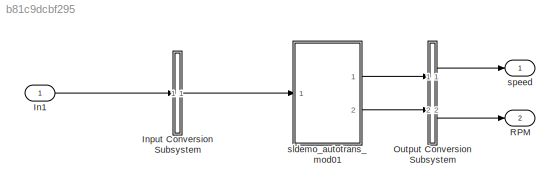
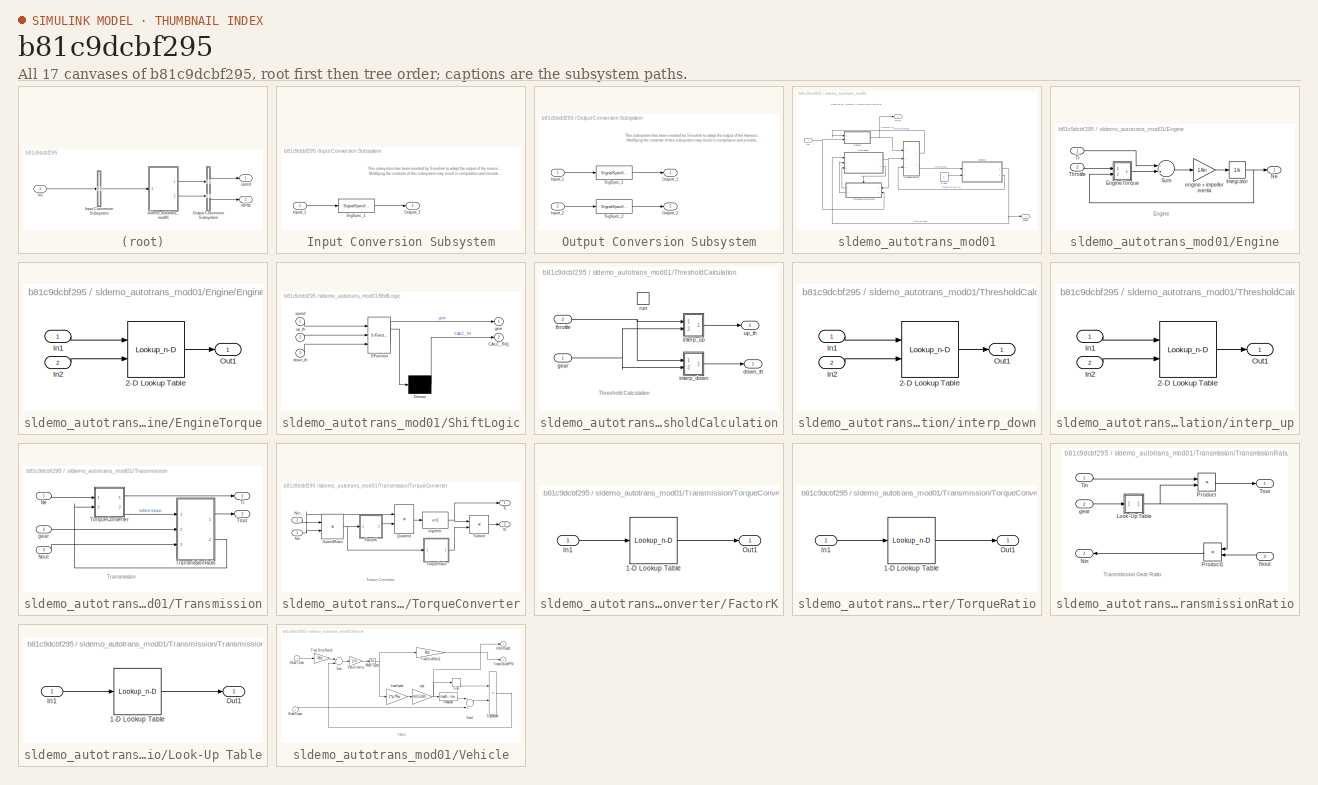
[diagram: thumbnail index - all 17 canvases of the model, root first then tree order]
MODEL slx_b81c9dcbf295
KIND model
CONFIG AbsTol = 1e-6
CONFIG EnableMultiTasking = off
CONFIG FixedStep = auto
CONFIG MaxStep = auto
CONFIG MinStep = auto
CONFIG RelTol = 1e-3
CONFIG SampleTimeConstraint = Unconstrained
CONFIG Solver = ode5
CONFIG SolverName = ode5
CONFIG StartTime = 0.0
CONFIG StopTime = 30
WORKSPACE source: MAT-file member
WORKSPACE Iei = 0.0219914882836
BLOCK [Inport] In1
  IconDisplay = Port number
  OutDataTypeStr = double
  PortDimensions = [1]
  SampleTime = 0
  SignalType = real
  VarSizeSig = No
BLOCK [SubSystem] Input Conversion Subsystem
  AttributesFormatString = %<Description>
  Description = Signal spec.\nand routing
  Permissions = ReadOnly
  PermitHierarchicalResolution = ExplicitOnly
  Ports = [1, 1]
  RequestExecContextInheritance = off
  Tag = __SLT_ICS__
  UserDataPersistent = on
BLOCK [Inport] Input Conversion Subsystem/Inport_1
  IconDisplay = Port number
BLOCK [Outport] Input Conversion Subsystem/Outport_1
  IconDisplay = Port number
BLOCK [SignalSpecification] Input Conversion Subsystem/SigSpec_1
  Dimensions = [1]
  OutDataTypeStr = double
  SampleTime = [0, 0]
  SignalType = real
  VarSizeSig = No
BLOCK [SubSystem] Output Conversion Subsystem
  AttributesFormatString = %<Description>
  Description = Signal spec.\nand routing
  Permissions = ReadOnly
  PermitHierarchicalResolution = ExplicitOnly
  Ports = [2, 2]
  RequestExecContextInheritance = off
  Tag = __SLT_OCS__
  UserDataPersistent = on
BLOCK [Inport] Output Conversion Subsystem/Inport_1
  IconDisplay = Port number
BLOCK [Inport] Output Conversion Subsystem/Inport_2
  IconDisplay = Port number
  Port = 2
BLOCK [Outport] Output Conversion Subsystem/Outport_1
  IconDisplay = Port number
BLOCK [Outport] Output Conversion Subsystem/Outport_2
  IconDisplay = Port number
  Port = 2
BLOCK [SignalSpecification] Output Conversion Subsystem/SigSpec_1
  Dimensions = [1]
  OutDataTypeStr = double
  SignalType = real
  VarSizeSig = No
BLOCK [SignalSpecification] Output Conversion Subsystem/SigSpec_2
  Dimensions = [1]
  OutDataTypeStr = double
  SignalType = real
  VarSizeSig = No
BLOCK [Outport] RPM
  IconDisplay = Port number
  OutDataTypeStr = double
  Port = 2
  PortDimensions = [1]
  SignalType = real
  VarSizeSig = No
BLOCK [SubSystem] sldemo_autotrans_mod01
  DataTypeOverride = Double
  Ports = [1, 2]
  RequestExecContextInheritance = off
  TreatAsAtomicUnit = on
BLOCK [Constant] sldemo_autotrans_mod01/Brake
  Value = 0
BLOCK [SubSystem] sldemo_autotrans_mod01/Engine
  Ports = [2, 1]
  RequestExecContextInheritance = off
BLOCK [SubSystem] sldemo_autotrans_mod01/Engine/EngineTorque
  Ports = [2, 1]
  RequestExecContextInheritance = off
BLOCK [Lookup_n-D] sldemo_autotrans_mod01/Engine/EngineTorque/2-D Lookup Table
  BreakpointsForDimension1 = thvec
  BreakpointsForDimension2 = nevec
  Ports = [2, 1]
  Table = emap
BLOCK [Inport] sldemo_autotrans_mod01/Engine/EngineTorque/In1
  IconDisplay = Port number
  OutDataTypeStr = double
  PortDimensions = 1
  SamplingMode = Sample based
  SignalType = real
BLOCK [Inport] sldemo_autotrans_mod01/Engine/EngineTorque/In2
  IconDisplay = Port number
  OutDataTypeStr = double
  Port = 2
  PortDimensions = 1
  SamplingMode = Sample based
  SignalType = real
BLOCK [Outport] sldemo_autotrans_mod01/Engine/EngineTorque/Out1
  IconDisplay = Port number
  OutDataTypeStr = double
  PortDimensions = 1
  SamplingMode = Sample based
  SignalType = real
BLOCK [Integrator] sldemo_autotrans_mod01/Engine/Integrator
  InitialCondition = 1000
  LimitOutput = on
  LowerSaturationLimit = 600
  Ports = [1, 1]
  UpperSaturationLimit = 6000
  ZeroCross = off
BLOCK [Outport] sldemo_autotrans_mod01/Engine/Ne
  IconDisplay = Port number
  InitialOutput = 0
BLOCK [Sum] sldemo_autotrans_mod01/Engine/Sum
  Inputs = -+
  Ports = [2, 1]
BLOCK [Inport] sldemo_autotrans_mod01/Engine/Throttle
  IconDisplay = Port number
  Port = 2
BLOCK [Inport] sldemo_autotrans_mod01/Engine/Ti
  IconDisplay = Port number
BLOCK [Gain] sldemo_autotrans_mod01/Engine/engine + impeller inertia
  Gain = 1/Iei
BLOCK [Inport] sldemo_autotrans_mod01/In1
  IconDisplay = Port number
  OutDataTypeStr = double
  PortDimensions = 1
  SampleTime = [0,0]
  SamplingMode = Sample based
  SignalType = real
BLOCK [Outport] sldemo_autotrans_mod01/RPM
  IconDisplay = Port number
  OutDataTypeStr = double
  Port = 2
  PortDimensions = 1
  SampleTime = [0,0]
  SamplingMode = Sample based
  SignalType = real
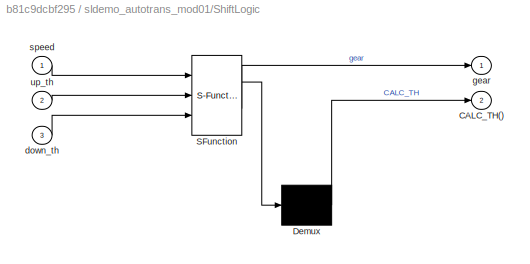
BLOCK [SubSystem] sldemo_autotrans_mod01/ShiftLogic
  ErrorFcn = Stateflow.Translate.translate
  PermitHierarchicalResolution = ExplicitOnly
  Ports = [3, 2]
  RequestExecContextInheritance = off
  SFBlockType = Chart
  TreatAsAtomicUnit = on
BLOCK [Demux] sldemo_autotrans_mod01/ShiftLogic/ Demux 
  Outputs = 1
  Ports = [1, 1]
BLOCK [S-Function] sldemo_autotrans_mod01/ShiftLogic/ SFunction 
  EnableBusSupport = on
  FunctionName = sf_sfun
  Parameters = TWAIT
  PortCounts = [3 2]
  Ports = [3, 2]
  SFcnIsStateOwnerBlock = off
  SFunctionDeploymentMode = off
  Tag = Stateflow S-Function sldemo_autotrans_mod01_Harness1_replacement 1
BLOCK [Outport] sldemo_autotrans_mod01/ShiftLogic/CALC_TH()
  IconDisplay = Port number
  Port = 2
BLOCK [Inport] sldemo_autotrans_mod01/ShiftLogic/down_th
  IconDisplay = Port number
  Port = 3
BLOCK [Outport] sldemo_autotrans_mod01/ShiftLogic/gear
  IconDisplay = Port number
BLOCK [Inport] sldemo_autotrans_mod01/ShiftLogic/speed
  IconDisplay = Port number
BLOCK [Inport] sldemo_autotrans_mod01/ShiftLogic/up_th
  IconDisplay = Port number
  Port = 2
BLOCK [SubSystem] sldemo_autotrans_mod01/ThresholdCalculation
  Ports = [2, 2, 0, 1]
  RequestExecContextInheritance = off
  TreatAsAtomicUnit = on
BLOCK [Outport] sldemo_autotrans_mod01/ThresholdCalculation/down_th
  IconDisplay = Port number
BLOCK [Inport] sldemo_autotrans_mod01/ThresholdCalculation/gear
  IconDisplay = Port number
BLOCK [SubSystem] sldemo_autotrans_mod01/ThresholdCalculation/interp_down
  Ports = [2, 1]
  RequestExecContextInheritance = off
BLOCK [Lookup_n-D] sldemo_autotrans_mod01/ThresholdCalculation/interp_down/2-D Lookup Table
  BreakpointsForDimension1 = downth
  BreakpointsForDimension2 = [1:4]
  InputSameDT = off
  LockScale = on
  OutDataTypeStr = double
  Ports = [2, 1]
  Table = downtab
BLOCK [Inport] sldemo_autotrans_mod01/ThresholdCalculation/interp_down/In1
  IconDisplay = Port number
  OutDataTypeStr = double
  PortDimensions = 1
  SamplingMode = Sample based
  SignalType = real
BLOCK [Inport] sldemo_autotrans_mod01/ThresholdCalculation/interp_down/In2
  IconDisplay = Port number
  OutDataTypeStr = double
  Port = 2
  PortDimensions = 1
  SamplingMode = Sample based
  SignalType = real
BLOCK [Outport] sldemo_autotrans_mod01/ThresholdCalculation/interp_down/Out1
  IconDisplay = Port number
  OutDataTypeStr = double
  PortDimensions = 1
  SamplingMode = Sample based
  SignalType = real
BLOCK [SubSystem] sldemo_autotrans_mod01/ThresholdCalculation/interp_up
  Ports = [2, 1]
  RequestExecContextInheritance = off
BLOCK [Lookup_n-D] sldemo_autotrans_mod01/ThresholdCalculation/interp_up/2-D Lookup Table
  BreakpointsForDimension1 = upth
  BreakpointsForDimension2 = [1:4]
  InputSameDT = off
  LockScale = on
  OutDataTypeStr = double
  Ports = [2, 1]
  Table = uptab
BLOCK [Inport] sldemo_autotrans_mod01/ThresholdCalculation/interp_up/In1
  IconDisplay = Port number
  OutDataTypeStr = double
  PortDimensions = 1
  SamplingMode = Sample based
  SignalType = real
BLOCK [Inport] sldemo_autotrans_mod01/ThresholdCalculation/interp_up/In2
  IconDisplay = Port number
  OutDataTypeStr = double
  Port = 2
  PortDimensions = 1
  SamplingMode = Sample based
  SignalType = real
BLOCK [Outport] sldemo_autotrans_mod01/ThresholdCalculation/interp_up/Out1
  IconDisplay = Port number
  OutDataTypeStr = double
  PortDimensions = 1
  SamplingMode = Sample based
  SignalType = real
BLOCK [TriggerPort] sldemo_autotrans_mod01/ThresholdCalculation/run
  Ports = []
  TriggerType = function-call
  VariantControl = (inherit)
  ZeroCross = off
BLOCK [Inport] sldemo_autotrans_mod01/ThresholdCalculation/throttle
  IconDisplay = Port number
  Port = 2
BLOCK [Outport] sldemo_autotrans_mod01/ThresholdCalculation/up_th
  IconDisplay = Port number
  Port = 2
BLOCK [SubSystem] sldemo_autotrans_mod01/Transmission
  Ports = [3, 2]
  RequestExecContextInheritance = off
BLOCK [Inport] sldemo_autotrans_mod01/Transmission/Ne
  IconDisplay = Port number
BLOCK [Inport] sldemo_autotrans_mod01/Transmission/Nout
  IconDisplay = Port number
  Port = 3
BLOCK [Outport] sldemo_autotrans_mod01/Transmission/Ti
  IconDisplay = Port number
  InitialOutput = 0
BLOCK [SubSystem] sldemo_autotrans_mod01/Transmission/TorqueConverter
  Ports = [2, 2]
  RequestExecContextInheritance = off
  ShowPortLabels = none
BLOCK [SubSystem] sldemo_autotrans_mod01/Transmission/TorqueConverter/FactorK
  Ports = [1, 1]
  RequestExecContextInheritance = off
BLOCK [Lookup_n-D] sldemo_autotrans_mod01/Transmission/TorqueConverter/FactorK/1-D Lookup Table
  BreakpointsForDimension1 = speedratio
  NumberOfTableDimensions = 1
  Ports = [1, 1]
  SaturateOnIntegerOverflow = on
  Table = Kfactor
BLOCK [Inport] sldemo_autotrans_mod01/Transmission/TorqueConverter/FactorK/In1
  IconDisplay = Port number
  OutDataTypeStr = double
  PortDimensions = 1
  SamplingMode = Sample based
  SignalType = real
BLOCK [Outport] sldemo_autotrans_mod01/Transmission/TorqueConverter/FactorK/Out1
  IconDisplay = Port number
  OutDataTypeStr = double
  PortDimensions = 1
  SamplingMode = Sample based
  SignalType = real
BLOCK [Fcn] sldemo_autotrans_mod01/Transmission/TorqueConverter/Impeller
  Expr = u^2
BLOCK [Inport] sldemo_autotrans_mod01/Transmission/TorqueConverter/Ne
  IconDisplay = Port number
BLOCK [Inport] sldemo_autotrans_mod01/Transmission/TorqueConverter/Nin
  IconDisplay = Port number
  Port = 2
BLOCK [Product] sldemo_autotrans_mod01/Transmission/TorqueConverter/Quotient
  Inputs = */
  Ports = [2, 1]
  RndMeth = Floor
BLOCK [Product] sldemo_autotrans_mod01/Transmission/TorqueConverter/SpeedRatio
  Inputs = */
  Ports = [2, 1]
  RndMeth = Floor
BLOCK [Outport] sldemo_autotrans_mod01/Transmission/TorqueConverter/Ti
  IconDisplay = Port number
  InitialOutput = 0
BLOCK [SubSystem] sldemo_autotrans_mod01/Transmission/TorqueConverter/TorqueRatio
  Ports = [1, 1]
  RequestExecContextInheritance = off
BLOCK [Lookup_n-D] sldemo_autotrans_mod01/Transmission/TorqueConverter/TorqueRatio/1-D Lookup Table
  BreakpointsForDimension1 = speedratio
  NumberOfTableDimensions = 1
  Ports = [1, 1]
  SaturateOnIntegerOverflow = on
  Table = Torkratio
BLOCK [Inport] sldemo_autotrans_mod01/Transmission/TorqueConverter/TorqueRatio/In1
  IconDisplay = Port number
  OutDataTypeStr = double
  PortDimensions = 1
  SamplingMode = Sample based
  SignalType = real
BLOCK [Outport] sldemo_autotrans_mod01/Transmission/TorqueConverter/TorqueRatio/Out1
  IconDisplay = Port number
  OutDataTypeStr = double
  PortDimensions = 1
  SamplingMode = Sample based
  SignalType = real
BLOCK [Outport] sldemo_autotrans_mod01/Transmission/TorqueConverter/Tt
  IconDisplay = Port number
  InitialOutput = 0
  Port = 2
BLOCK [Product] sldemo_autotrans_mod01/Transmission/TorqueConverter/Turbine
  Ports = [2, 1]
  RndMeth = Floor
BLOCK [Outport] sldemo_autotrans_mod01/Transmission/Tout
  IconDisplay = Port number
  InitialOutput = 0
  Port = 2
BLOCK [SubSystem] sldemo_autotrans_mod01/Transmission/TransmissionRatio
  Ports = [3, 2]
  RequestExecContextInheritance = off
BLOCK [SubSystem] sldemo_autotrans_mod01/Transmission/TransmissionRatio/Look-Up Table
  Ports = [1, 1]
  RequestExecContextInheritance = off
BLOCK [Lookup_n-D] sldemo_autotrans_mod01/Transmission/TransmissionRatio/Look-Up Table/1-D Lookup Table
  BreakpointsForDimension1 = [1 2 3 4]
  LockScale = on
  NumberOfTableDimensions = 1
  OutDataTypeStr = double
  Ports = [1, 1]
  SaturateOnIntegerOverflow = on
  Table = [2.393 1.450 1.000 0.677]
BLOCK [Inport] sldemo_autotrans_mod01/Transmission/TransmissionRatio/Look-Up Table/In1
  IconDisplay = Port number
  OutDataTypeStr = double
  PortDimensions = 1
  SamplingMode = Sample based
  SignalType = real
BLOCK [Outport] sldemo_autotrans_mod01/Transmission/TransmissionRatio/Look-Up Table/Out1
  IconDisplay = Port number
  OutDataTypeStr = double
  PortDimensions = 1
  SamplingMode = Sample based
  SignalType = real
BLOCK [Outport] sldemo_autotrans_mod01/Transmission/TransmissionRatio/Nin
  IconDisplay = Port number
  InitialOutput = 0
  Port = 2
BLOCK [Inport] sldemo_autotrans_mod01/Transmission/TransmissionRatio/Nout
  IconDisplay = Port number
  Port = 3
BLOCK [Product] sldemo_autotrans_mod01/Transmission/TransmissionRatio/Product
  Ports = [2, 1]
  RndMeth = Floor
BLOCK [Product] sldemo_autotrans_mod01/Transmission/TransmissionRatio/Product1
  Ports = [2, 1]
  RndMeth = Floor
BLOCK [Inport] sldemo_autotrans_mod01/Transmission/TransmissionRatio/Tin
  IconDisplay = Port number
BLOCK [Outport] sldemo_autotrans_mod01/Transmission/TransmissionRatio/Tout
  IconDisplay = Port number
  InitialOutput = 0
BLOCK [Inport] sldemo_autotrans_mod01/Transmission/TransmissionRatio/gear
  IconDisplay = Port number
  Port = 2
BLOCK [Inport] sldemo_autotrans_mod01/Transmission/gear
  IconDisplay = Port number
  Port = 2
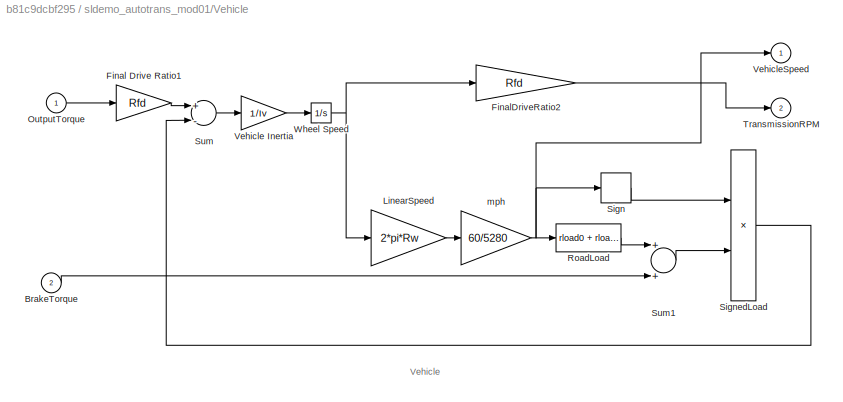
BLOCK [SubSystem] sldemo_autotrans_mod01/Vehicle
  Ports = [2, 2]
  RequestExecContextInheritance = off
  ShowPortLabels = none
BLOCK [Inport] sldemo_autotrans_mod01/Vehicle/BrakeTorque
  IconDisplay = Port number
  Port = 2
BLOCK [Gain] sldemo_autotrans_mod01/Vehicle/Final Drive Ratio1
  Gain = Rfd
BLOCK [Gain] sldemo_autotrans_mod01/Vehicle/FinalDriveRatio2
  Gain = Rfd
BLOCK [Gain] sldemo_autotrans_mod01/Vehicle/LinearSpeed
  Gain = 2*pi*Rw
BLOCK [Inport] sldemo_autotrans_mod01/Vehicle/OutputTorque
  IconDisplay = Port number
BLOCK [Fcn] sldemo_autotrans_mod01/Vehicle/RoadLoad
  Expr = rload0 + rload2*u^2
BLOCK [Signum] sldemo_autotrans_mod01/Vehicle/Sign
BLOCK [Product] sldemo_autotrans_mod01/Vehicle/SignedLoad
  Ports = [2, 1]
  RndMeth = Floor
BLOCK [Sum] sldemo_autotrans_mod01/Vehicle/Sum
  Inputs = +-
  Ports = [2, 1]
BLOCK [Sum] sldemo_autotrans_mod01/Vehicle/Sum1
  Ports = [2, 1]
BLOCK [Outport] sldemo_autotrans_mod01/Vehicle/TransmissionRPM
  IconDisplay = Port number
  InitialOutput = 0
  Port = 2
BLOCK [Gain] sldemo_autotrans_mod01/Vehicle/Vehicle Inertia
  Gain = 1/Iv
BLOCK [Outport] sldemo_autotrans_mod01/Vehicle/VehicleSpeed
  IconDisplay = Port number
  InitialOutput = 0
BLOCK [Integrator] sldemo_autotrans_mod01/Vehicle/Wheel Speed
  InitialCondition = N20/Rfd
  Ports = [1, 1]
  ZeroCross = off
BLOCK [Gain] sldemo_autotrans_mod01/Vehicle/mph
  Gain = 60/5280
BLOCK [Outport] sldemo_autotrans_mod01/speed
  IconDisplay = Port number
  OutDataTypeStr = double
  PortDimensions = 1
  SampleTime = [0,0]
  SamplingMode = Sample based
  SignalType = real
BLOCK [Outport] speed
  IconDisplay = Port number
  OutDataTypeStr = double
  PortDimensions = [1]
  SignalType = real
  VarSizeSig = No
ANNOTATION Input Conversion Subsystem: This subsystem has been inserted by Simulink to adapt the output of the source blocks to the interface required by the harnessed component. Modifying the contents of this subsystem may result in compilation and simulation failure.
ANNOTATION Output Conversion Subsystem: This subsystem has been inserted by Simulink to adapt the output of the harnessed component to the interface required by the sink blocks. Modifying the contents of this subsystem may result in compilation and simulation failure.
ANNOTATION sldemo_autotrans_mod01: Modeling an Automatic Transmission Controller
ANNOTATION sldemo_autotrans_mod01/Engine: Engine
ANNOTATION sldemo_autotrans_mod01/ThresholdCalculation: Threshold Calculation
ANNOTATION sldemo_autotrans_mod01/Transmission: Transmission
ANNOTATION sldemo_autotrans_mod01/Transmission/TorqueConverter: Torque Converter
ANNOTATION sldemo_autotrans_mod01/Transmission/TransmissionRatio: Transmission Gear Ratio
ANNOTATION sldemo_autotrans_mod01/Vehicle: Vehicle
LINE In1:1 -> Input Conversion Subsystem:1
LINE Input Conversion Subsystem/Inport_1:1 -> Input Conversion Subsystem/SigSpec_1:1
LINE Input Conversion Subsystem/SigSpec_1:1 -> Input Conversion Subsystem/Outport_1:1
LINE Input Conversion Subsystem:1 -> sldemo_autotrans_mod01:1
LINE Output Conversion Subsystem/Inport_1:1 -> Output Conversion Subsystem/SigSpec_1:1
LINE Output Conversion Subsystem/Inport_2:1 -> Output Conversion Subsystem/SigSpec_2:1
LINE Output Conversion Subsystem/SigSpec_1:1 -> Output Conversion Subsystem/Outport_1:1
LINE Output Conversion Subsystem/SigSpec_2:1 -> Output Conversion Subsystem/Outport_2:1
LINE Output Conversion Subsystem:1 -> speed:1
LINE Output Conversion Subsystem:2 -> RPM:1
LINE sldemo_autotrans_mod01/Brake:1 -> sldemo_autotrans_mod01/Vehicle:2
LINE sldemo_autotrans_mod01/Engine/EngineTorque/2-D Lookup Table:1 -> sldemo_autotrans_mod01/Engine/EngineTorque/Out1:1
LINE sldemo_autotrans_mod01/Engine/EngineTorque/In1:1 -> sldemo_autotrans_mod01/Engine/EngineTorque/2-D Lookup Table:1
LINE sldemo_autotrans_mod01/Engine/EngineTorque/In2:1 -> sldemo_autotrans_mod01/Engine/EngineTorque/2-D Lookup Table:2
LINE sldemo_autotrans_mod01/Engine/EngineTorque:1 -> sldemo_autotrans_mod01/Engine/Sum:2
NET sldemo_autotrans_mod01/Engine/Integrator:1 -> sldemo_autotrans_mod01/Engine/EngineTorque:2, sldemo_autotrans_mod01/Engine/Ne:1
LINE sldemo_autotrans_mod01/Engine/Sum:1 -> sldemo_autotrans_mod01/Engine/engine + impeller inertia:1
LINE sldemo_autotrans_mod01/Engine/Throttle:1 -> sldemo_autotrans_mod01/Engine/EngineTorque:1
LINE sldemo_autotrans_mod01/Engine/Ti:1 -> sldemo_autotrans_mod01/Engine/Sum:1
LINE sldemo_autotrans_mod01/Engine/engine + impeller inertia:1 -> sldemo_autotrans_mod01/Engine/Integrator:1
NET sldemo_autotrans_mod01/Engine:1 -> sldemo_autotrans_mod01/RPM:1, sldemo_autotrans_mod01/Transmission:1
NET sldemo_autotrans_mod01/In1:1 -> sldemo_autotrans_mod01/Engine:2, sldemo_autotrans_mod01/ThresholdCalculation:2
NET sldemo_autotrans_mod01/ShiftLogic:1 -> sldemo_autotrans_mod01/ThresholdCalculation:1, sldemo_autotrans_mod01/Transmission:2
LINE sldemo_autotrans_mod01/ShiftLogic:2 -> sldemo_autotrans_mod01/ThresholdCalculation:trigger
NET sldemo_autotrans_mod01/ThresholdCalculation/gear:1 -> sldemo_autotrans_mod01/ThresholdCalculation/interp_down:2, sldemo_autotrans_mod01/ThresholdCalculation/interp_up:2
LINE sldemo_autotrans_mod01/ThresholdCalculation/interp_down/2-D Lookup Table:1 -> sldemo_autotrans_mod01/ThresholdCalculation/interp_down/Out1:1
LINE sldemo_autotrans_mod01/ThresholdCalculation/interp_down/In1:1 -> sldemo_autotrans_mod01/ThresholdCalculation/interp_down/2-D Lookup Table:1
LINE sldemo_autotrans_mod01/ThresholdCalculation/interp_down/In2:1 -> sldemo_autotrans_mod01/ThresholdCalculation/interp_down/2-D Lookup Table:2
LINE sldemo_autotrans_mod01/ThresholdCalculation/interp_down:1 -> sldemo_autotrans_mod01/ThresholdCalculation/down_th:1
LINE sldemo_autotrans_mod01/ThresholdCalculation/interp_up/2-D Lookup Table:1 -> sldemo_autotrans_mod01/ThresholdCalculation/interp_up/Out1:1
LINE sldemo_autotrans_mod01/ThresholdCalculation/interp_up/In1:1 -> sldemo_autotrans_mod01/ThresholdCalculation/interp_up/2-D Lookup Table:1
LINE sldemo_autotrans_mod01/ThresholdCalculation/interp_up/In2:1 -> sldemo_autotrans_mod01/ThresholdCalculation/interp_up/2-D Lookup Table:2
LINE sldemo_autotrans_mod01/ThresholdCalculation/interp_up:1 -> sldemo_autotrans_mod01/ThresholdCalculation/up_th:1
NET sldemo_autotrans_mod01/ThresholdCalculation/throttle:1 -> sldemo_autotrans_mod01/ThresholdCalculation/interp_down:1, sldemo_autotrans_mod01/ThresholdCalculation/interp_up:1
LINE sldemo_autotrans_mod01/ThresholdCalculation:1 -> sldemo_autotrans_mod01/ShiftLogic:3
LINE sldemo_autotrans_mod01/ThresholdCalculation:2 -> sldemo_autotrans_mod01/ShiftLogic:2
LINE sldemo_autotrans_mod01/Transmission/Ne:1 -> sldemo_autotrans_mod01/Transmission/TorqueConverter:1
LINE sldemo_autotrans_mod01/Transmission/Nout:1 -> sldemo_autotrans_mod01/Transmission/TransmissionRatio:3
LINE sldemo_autotrans_mod01/Transmission/TorqueConverter/FactorK/1-D Lookup Table:1 -> sldemo_autotrans_mod01/Transmission/TorqueConverter/FactorK/Out1:1
LINE sldemo_autotrans_mod01/Transmission/TorqueConverter/FactorK/In1:1 -> sldemo_autotrans_mod01/Transmission/TorqueConverter/FactorK/1-D Lookup Table:1
LINE sldemo_autotrans_mod01/Transmission/TorqueConverter/FactorK:1 -> sldemo_autotrans_mod01/Transmission/TorqueConverter/Quotient:2
NET sldemo_autotrans_mod01/Transmission/TorqueConverter/Impeller:1 -> sldemo_autotrans_mod01/Transmission/TorqueConverter/Ti:1, sldemo_autotrans_mod01/Transmission/TorqueConverter/Turbine:1
NET sldemo_autotrans_mod01/Transmission/TorqueConverter/Ne:1 -> sldemo_autotrans_mod01/Transmission/TorqueConverter/Quotient:1, sldemo_autotrans_mod01/Transmission/TorqueConverter/SpeedRatio:2
LINE sldemo_autotrans_mod01/Transmission/TorqueConverter/Nin:1 -> sldemo_autotrans_mod01/Transmission/TorqueConverter/SpeedRatio:1
LINE sldemo_autotrans_mod01/Transmission/TorqueConverter/Quotient:1 -> sldemo_autotrans_mod01/Transmission/TorqueConverter/Impeller:1
NET sldemo_autotrans_mod01/Transmission/TorqueConverter/SpeedRatio:1 -> sldemo_autotrans_mod01/Transmission/TorqueConverter/FactorK:1, sldemo_autotrans_mod01/Transmission/TorqueConverter/TorqueRatio:1
LINE sldemo_autotrans_mod01/Transmission/TorqueConverter/TorqueRatio/1-D Lookup Table:1 -> sldemo_autotrans_mod01/Transmission/TorqueConverter/TorqueRatio/Out1:1
LINE sldemo_autotrans_mod01/Transmission/TorqueConverter/TorqueRatio/In1:1 -> sldemo_autotrans_mod01/Transmission/TorqueConverter/TorqueRatio/1-D Lookup Table:1
LINE sldemo_autotrans_mod01/Transmission/TorqueConverter/TorqueRatio:1 -> sldemo_autotrans_mod01/Transmission/TorqueConverter/Turbine:2
LINE sldemo_autotrans_mod01/Transmission/TorqueConverter/Turbine:1 -> sldemo_autotrans_mod01/Transmission/TorqueConverter/Tt:1
LINE sldemo_autotrans_mod01/Transmission/TorqueConverter:1 -> sldemo_autotrans_mod01/Transmission/Ti:1
LINE sldemo_autotrans_mod01/Transmission/TorqueConverter:2 -> sldemo_autotrans_mod01/Transmission/TransmissionRatio:1
LINE sldemo_autotrans_mod01/Transmission/TransmissionRatio/Look-Up Table/1-D Lookup Table:1 -> sldemo_autotrans_mod01/Transmission/TransmissionRatio/Look-Up Table/Out1:1
LINE sldemo_autotrans_mod01/Transmission/TransmissionRatio/Look-Up Table/In1:1 -> sldemo_autotrans_mod01/Transmission/TransmissionRatio/Look-Up Table/1-D Lookup Table:1
NET sldemo_autotrans_mod01/Transmission/TransmissionRatio/Look-Up Table:1 -> sldemo_autotrans_mod01/Transmission/TransmissionRatio/Product1:1, sldemo_autotrans_mod01/Transmission/TransmissionRatio/Product:2
LINE sldemo_autotrans_mod01/Transmission/TransmissionRatio/Nout:1 -> sldemo_autotrans_mod01/Transmission/TransmissionRatio/Product1:2
LINE sldemo_autotrans_mod01/Transmission/TransmissionRatio/Product1:1 -> sldemo_autotrans_mod01/Transmission/TransmissionRatio/Nin:1
LINE sldemo_autotrans_mod01/Transmission/TransmissionRatio/Product:1 -> sldemo_autotrans_mod01/Transmission/TransmissionRatio/Tout:1
LINE sldemo_autotrans_mod01/Transmission/TransmissionRatio/Tin:1 -> sldemo_autotrans_mod01/Transmission/TransmissionRatio/Product:1
LINE sldemo_autotrans_mod01/Transmission/TransmissionRatio/gear:1 -> sldemo_autotrans_mod01/Transmission/TransmissionRatio/Look-Up Table:1
LINE sldemo_autotrans_mod01/Transmission/TransmissionRatio:1 -> sldemo_autotrans_mod01/Transmission/Tout:1
LINE sldemo_autotrans_mod01/Transmission/TransmissionRatio:2 -> sldemo_autotrans_mod01/Transmission/TorqueConverter:2
LINE sldemo_autotrans_mod01/Transmission/gear:1 -> sldemo_autotrans_mod01/Transmission/TransmissionRatio:2
LINE sldemo_autotrans_mod01/Transmission:1 -> sldemo_autotrans_mod01/Engine:1
LINE sldemo_autotrans_mod01/Transmission:2 -> sldemo_autotrans_mod01/Vehicle:1
LINE sldemo_autotrans_mod01/Vehicle/BrakeTorque:1 -> sldemo_autotrans_mod01/Vehicle/Sum1:2
LINE sldemo_autotrans_mod01/Vehicle/Final Drive Ratio1:1 -> sldemo_autotrans_mod01/Vehicle/Sum:1
LINE sldemo_autotrans_mod01/Vehicle/FinalDriveRatio2:1 -> sldemo_autotrans_mod01/Vehicle/TransmissionRPM:1
LINE sldemo_autotrans_mod01/Vehicle/LinearSpeed:1 -> sldemo_autotrans_mod01/Vehicle/mph:1
LINE sldemo_autotrans_mod01/Vehicle/OutputTorque:1 -> sldemo_autotrans_mod01/Vehicle/Final Drive Ratio1:1
LINE sldemo_autotrans_mod01/Vehicle/RoadLoad:1 -> sldemo_autotrans_mod01/Vehicle/Sum1:1
LINE sldemo_autotrans_mod01/Vehicle/Sign:1 -> sldemo_autotrans_mod01/Vehicle/SignedLoad:1
LINE sldemo_autotrans_mod01/Vehicle/SignedLoad:1 -> sldemo_autotrans_mod01/Vehicle/Sum:2
LINE sldemo_autotrans_mod01/Vehicle/Sum1:1 -> sldemo_autotrans_mod01/Vehicle/SignedLoad:2
LINE sldemo_autotrans_mod01/Vehicle/Sum:1 -> sldemo_autotrans_mod01/Vehicle/Vehicle Inertia:1
LINE sldemo_autotrans_mod01/Vehicle/Vehicle Inertia:1 -> sldemo_autotrans_mod01/Vehicle/Wheel Speed:1
NET sldemo_autotrans_mod01/Vehicle/Wheel Speed:1 -> sldemo_autotrans_mod01/Vehicle/FinalDriveRatio2:1, sldemo_autotrans_mod01/Vehicle/LinearSpeed:1
NET sldemo_autotrans_mod01/Vehicle/mph:1 -> sldemo_autotrans_mod01/Vehicle/RoadLoad:1, sldemo_autotrans_mod01/Vehicle/Sign:1, sldemo_autotrans_mod01/Vehicle/VehicleSpeed:1
NET sldemo_autotrans_mod01/Vehicle:1 -> sldemo_autotrans_mod01/ShiftLogic:1, sldemo_autotrans_mod01/speed:1
LINE sldemo_autotrans_mod01/Vehicle:2 -> sldemo_autotrans_mod01/Transmission:3
LINE sldemo_autotrans_mod01:1 -> Output Conversion Subsystem:1
LINE sldemo_autotrans_mod01:2 -> Output Conversion Subsystem:2
note: NET lines group one-source signal fan-out (src -> all destinations, sorted); 1:1 wires keep LINE
CHART sldemo_autotrans_mod01/ShiftLogic states=9 transitions=14
  STATE_LABEL 'gear_state'
  STATE_LABEL 'fourth\nentry:\ngear = 4;'
  STATE_LABEL 'third\nentry:\ngear = 3;'
  STATE_LABEL 'second\nentry:\ngear = 2;'
  STATE_LABEL 'first\nentry:\ngear = 1;'
  STATE_LABEL 'UP'
  STATE_LABEL 'UP'
  STATE_LABEL 'UP'
  STATE_LABEL 'DOWN'
  STATE_LABEL 'DOWN'
  STATE_LABEL 'DOWN'
  STATE_LABEL 'fourth\nentry:\ngear = 4;'
  STATE_LABEL 'third\nentry:\ngear = 3;'
  STATE_LABEL 'second\nentry:\ngear = 2;'
  STATE_LABEL 'first\nentry:\ngear = 1;'
  STATE_LABEL 'selection_state\nduring: CALC_TH;'
  STATE_LABEL 'steady_state'
  STATE_LABEL 'upshifting'
  STATE_LABEL 'downshifting'
  STATE_LABEL '[speed > up_th]'
  STATE_LABEL '[speed < down_th]'
  STATE_LABEL 'after(TWAIT,tick)\n[speed <= down_th]\n{gear_state.DOWN}'
  STATE_LABEL '[speed > down_th]'
  STATE_LABEL 'after(TWAIT,tick)\n[speed >= up_th]\n{gear_state.UP}'
  STATE_LABEL '[speed < up_th]'
  STATE_LABEL 'steady_state'
  STATE_LABEL 'upshifting'
  STATE_LABEL 'downshifting'
